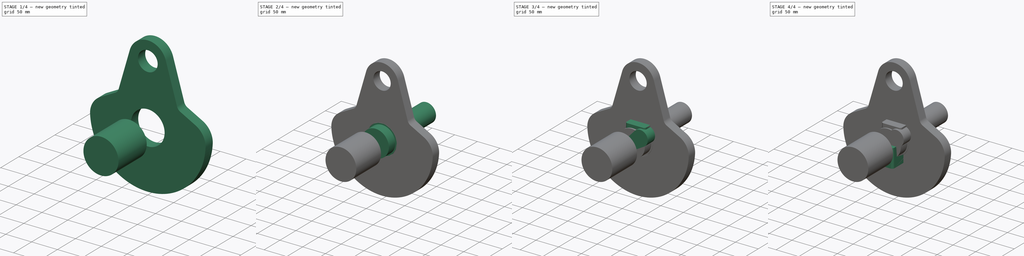
[diagram: build sequence overview — one tinted view per stage of 4, left to right]
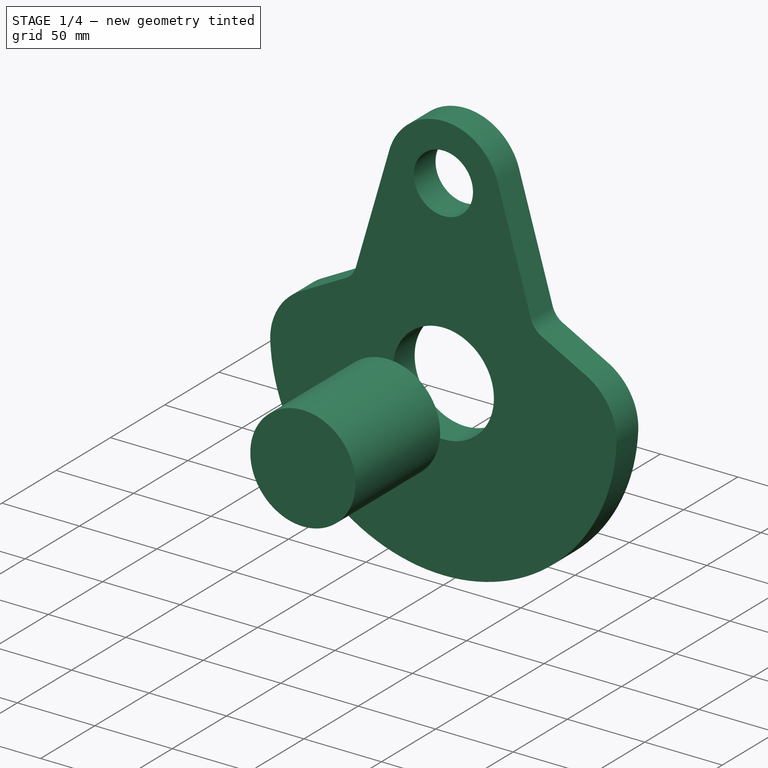
[diagram: stage 1 of 4 — iso view after this stage's code; geometry added in this stage tinted green]
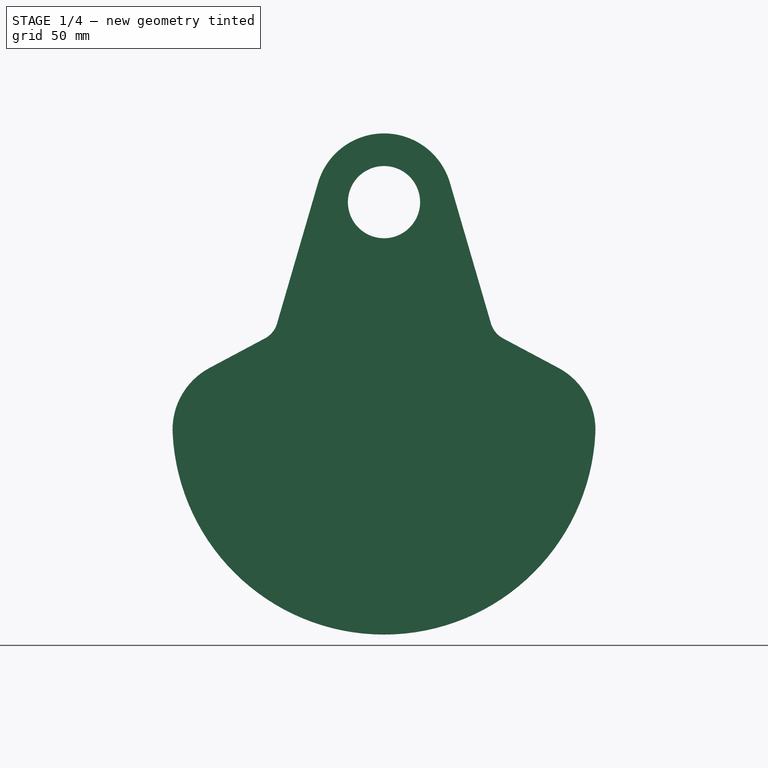
[diagram: stage 1 of 4 — front view after this stage's code; geometry added in this stage tinted green]
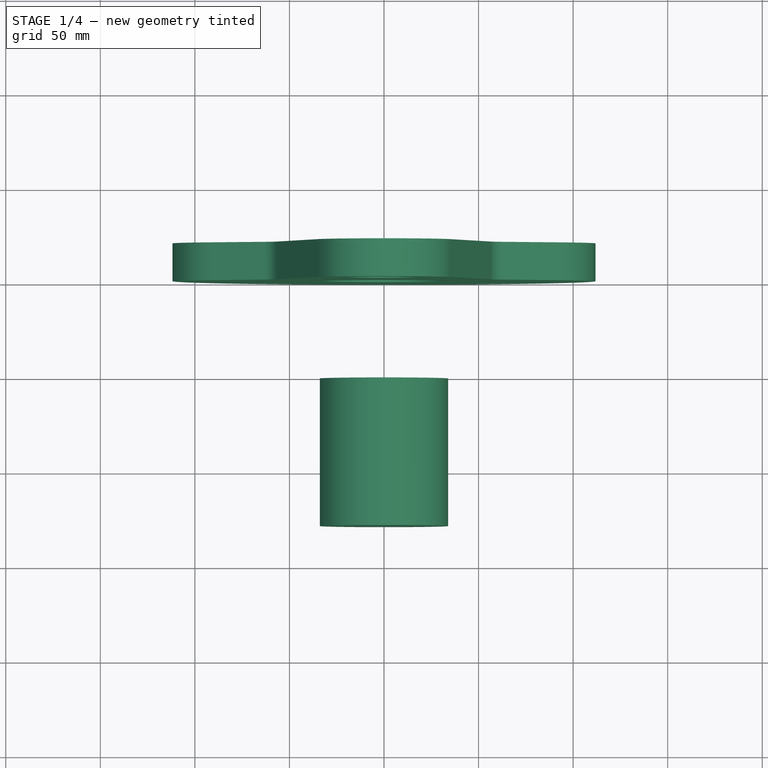
[diagram: stage 1 of 4 — top view after this stage's code; geometry added in this stage tinted green]
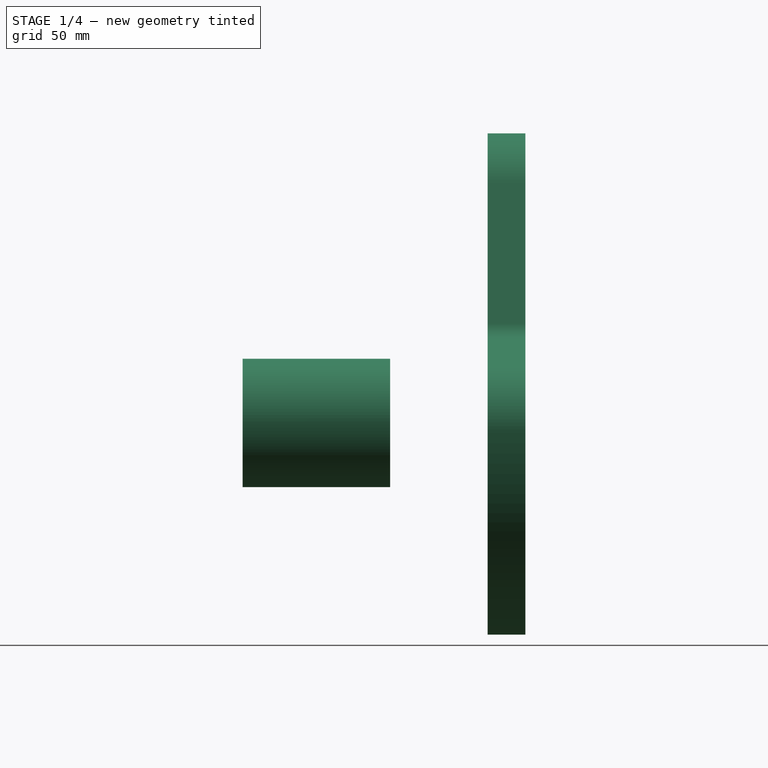
[diagram: stage 1 of 4 — right view after this stage's code; geometry added in this stage tinted green]
FCSTD DOCUMENT  (FreeCAD 1.1R14555 (Git shallow))
Label: BMW_R35
License: All rights reserved
objects: Sketcher::SketchObject×11, App::Point×6, PartDesign::Pad×5, PartDesign::Body×5, PartDesign::Revolution×3, PartDesign::Groove×1, PartDesign::Mirrored×1, PartDesign::FeatureBase×1, App::Part×1
note: 58 computed .brp shape members not serialized (recipe doc carries the construction recipe); baked Part::Feature solids carry a one-line shape summary decoded from their .brp

FEATURE [PartDesign::Body] Body001  label="Body_flywheel_shaft"
  AllowCompound = false
  Group = -> [Sketch008,Revolution001]
  Origin = -> Origin004
  Tip = -> Revolution001
FEATURE [App::Point] Origin007
  Role = Origin
FEATURE [Sketcher::SketchObject] Sketch009
  ArcFitTolerance = 1e-06
  AttachmentSupport = -> [Origin006]
  ExternalTypes = [0]
  FullyConstrained = false
  MakeInternals = false
  MapMode = 5
  Placement = pos=(0,0,0) rot=(1,0,0;1.5708rad)
  sketch-geometry (11):
    g0: ArcOfCircle CenterX=0 CenterY=0 CenterZ=0 NormalX=0 NormalY=0 NormalZ=1 AngleXU=0 Radius=111.898 StartAngle=4.71239 EndAngle=6.23607
    g1: ArcOfCircle CenterX=0 CenterY=116.782 CenterZ=0 NormalX=0 NormalY=0 NormalZ=1 AngleXU=0 Radius=36.3394 StartAngle=0.283607 EndAngle=1.5708
    g2: ArcOfCircle CenterX=74.7942 CenterY=-3.52641 CenterZ=0 NormalX=0 NormalY=0 NormalZ=1 AngleXU=0 Radius=37.0204 StartAngle=6.23607 EndAngle=7.36429
    g3: ArcOfCircle CenterX=69.2178 CenterY=56.3614 CenterZ=0 NormalX=0 NormalY=0 NormalZ=1 AngleXU=0 Radius=13.2064 StartAngle=3.4252 EndAngle=4.2227
    g4: LineSegment StartX=63.0061 StartY=44.707 StartZ=0 EndX=92.2068 EndY=29.1433 EndZ=0
    g5: LineSegment StartX=34.8878 StartY=126.95 StartZ=0 EndX=56.5389 EndY=52.6659 EndZ=0
    g6: ArcOfCircle CenterX=0 CenterY=0 CenterZ=0 NormalX=0 NormalY=0 NormalZ=1 AngleXU=0 Radius=32.5794 StartAngle=4.71239 EndAngle=7.85398
    g7: ArcOfCircle CenterX=0 CenterY=116.782 CenterZ=0 NormalX=0 NormalY=0 NormalZ=1 AngleXU=0 Radius=19.0882 StartAngle=4.71239 EndAngle=7.85398
    g8: LineSegment StartX=0 StartY=153.121 StartZ=0 EndX=0 EndY=135.87 EndZ=0
    g9: LineSegment StartX=1e-14 StartY=97.6936 StartZ=0 EndX=1e-14 EndY=32.5794 EndZ=0
    g10: LineSegment StartX=-6e-15 StartY=-32.5794 StartZ=0 EndX=-6e-15 EndY=-111.898 EndZ=0
  constraints (22):
    c: PointOnObject(g1,g-2)
    c: PointOnObject(g1,g-2)
    c: Tangent(g5,g3) = -1.5708
    c: Tangent(g4,g3) = -1.5708
    c: Tangent(g4,g2) = 1.5708
    c: Tangent(g2,g0) = -1.5708
    c: Coincident(g6,g-1)
    c: PointOnObject(g6,g-2)
    c: Coincident(g0,g6)
    c: Coincident(g7,g1)
    c: PointOnObject(g7,g-2)
    c: Coincident(g8,g1)
    c: Coincident(g8,g7)
    c: Vertical(g8)
    c: Coincident(g9,g7)
    c: Coincident(g9,g6)
    c: Vertical(g9)
    c: Coincident(g10,g6)
    c: Coincident(g10,g0)
    c: Vertical(g10)
    c: DistanceY(g0,g1) = 116.782
    c: Tangent(g5,g1) = 1.5708
FEATURE [PartDesign::Pad] Pad005
  Direction = (0,-1,0)
  Length = 20
  Length2 = 10
  Profile = -> Sketch009
  ReferenceAxis = -> Sketch009 [N_Axis]
  Refine = true
  Reversed = true
  SideType = 0
  Suppressed = false
  Type = 0
  Type2 = 0
FEATURE [PartDesign::Mirrored] Mirrored
  BaseFeature = -> Pad005
  MirrorPlane = -> YZ_Plane003
  Refine = true
  Suppressed = false
  TransformMode = 1
FEATURE [PartDesign::Body] Body003
  AllowCompound = false
  Group = -> [Clone]
  Origin = -> Origin008
  Placement = pos=(0,-70,0) rot=(0,0,1;0rad)
  Tip = -> Clone
FEATURE [App::Point] Origin011
  Role = Origin
FEATURE [Sketcher::SketchObject] Sketch010
  ArcFitTolerance = 1e-06
  AttachmentSupport = -> [Origin010]
  ExternalTypes = [0]
  FullyConstrained = false
  MakeInternals = false
  MapMode = 5
  Placement = pos=(0,0,0) rot=(0.57735,0.57735,0.57735;2.0944rad)
  sketch-geometry (4):
    g0: LineSegment StartX=-129.549 StartY=0 StartZ=0 EndX=-129.549 EndY=-33.9442 EndZ=0
    g1: LineSegment StartX=-129.549 StartY=-33.9442 StartZ=0 EndX=-51.5107 EndY=-33.9442 EndZ=0
    g2: LineSegment StartX=-51.5107 StartY=-33.9442 StartZ=0 EndX=-51.5107 EndY=0 EndZ=0
    g3: LineSegment StartX=-51.5107 StartY=0 StartZ=0 EndX=-129.549 EndY=0 EndZ=0
  constraints (9):
    c: Coincident(g0,g1)
    c: Coincident(g1,g2)
    c: Coincident(g2,g3)
    c: Coincident(g3,g0)
    c: Vertical(g0)
    c: Vertical(g2)
    c: Horizontal(g1)
    c: Horizontal(g3)
    c: PointOnObject(g0,g-1)
FEATURE [PartDesign::Revolution] Revolution002
  Angle = 360
  Angle2 = 60
  Axis = (0,1,0)
  Base = (0,0,0)
  Profile = -> Sketch010
  ReferenceAxis = -> Sketch010 [H_Axis]
  Reversed = true
  Suppressed = false
  Type = 0
FEATURE [PartDesign::Body] Body004
  AllowCompound = false
  Group = -> [Sketch010,Revolution002]
  Origin = -> Origin010
  Tip = -> Revolution002
FEATURE [App::Part] Part  label="Part_CrankShaft"
  Group = -> [Body001,Body002,Body003,Body004]
  Origin = -> Origin002
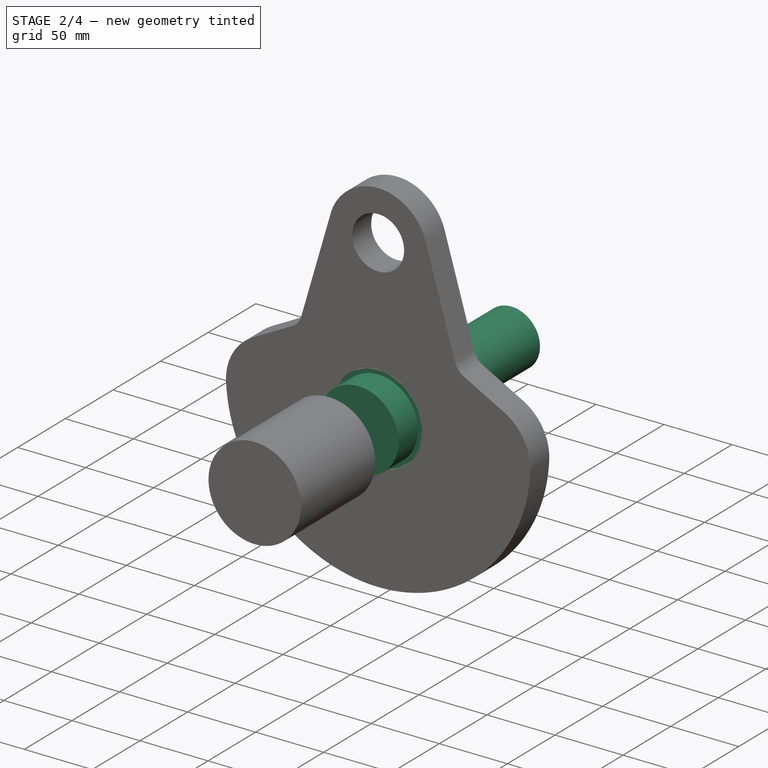
[diagram: stage 2 of 4 — iso view after this stage's code; geometry added in this stage tinted green]
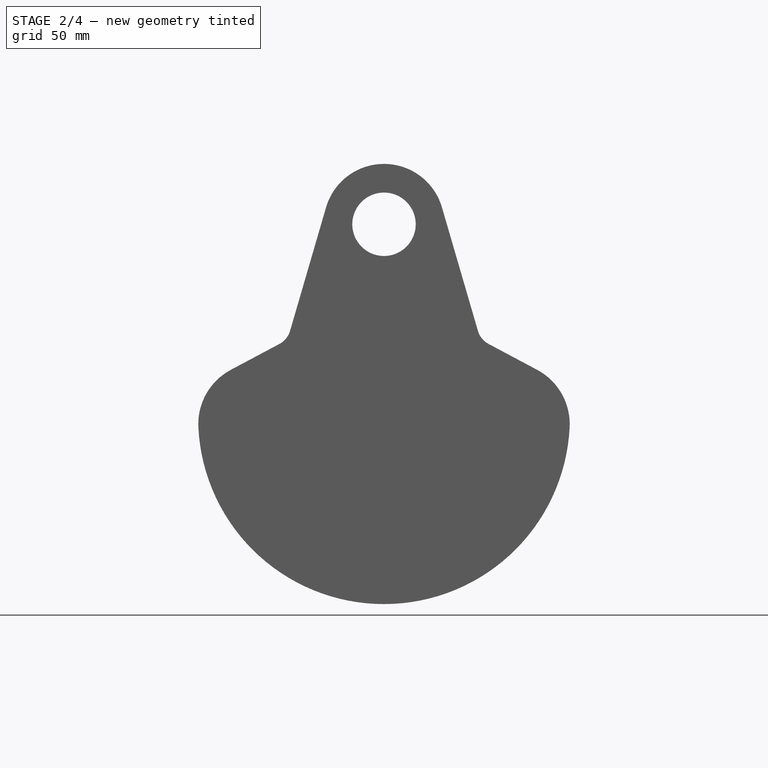
[diagram: stage 2 of 4 — front view after this stage's code; geometry added in this stage tinted green]
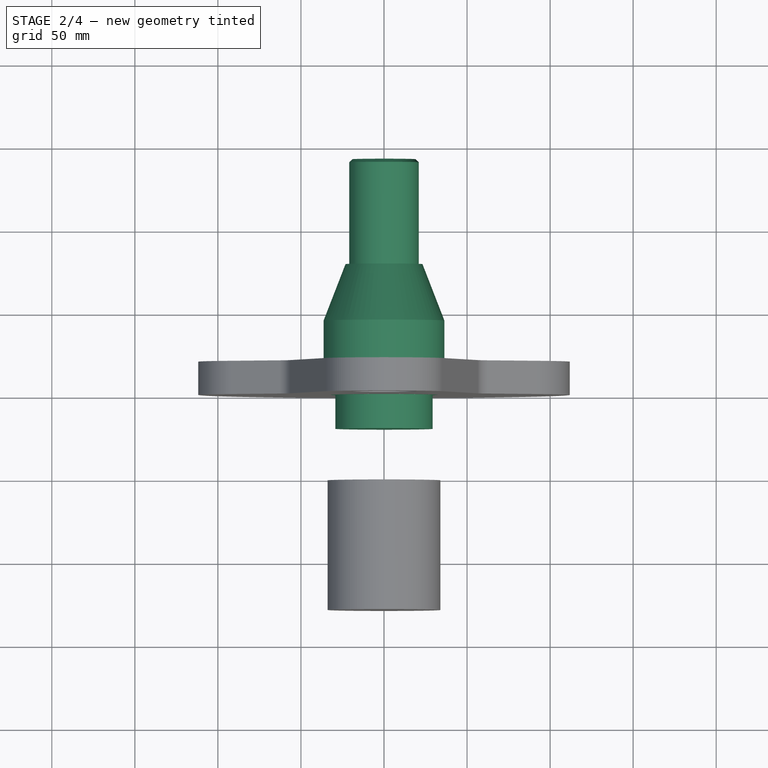
[diagram: stage 2 of 4 — top view after this stage's code; geometry added in this stage tinted green]
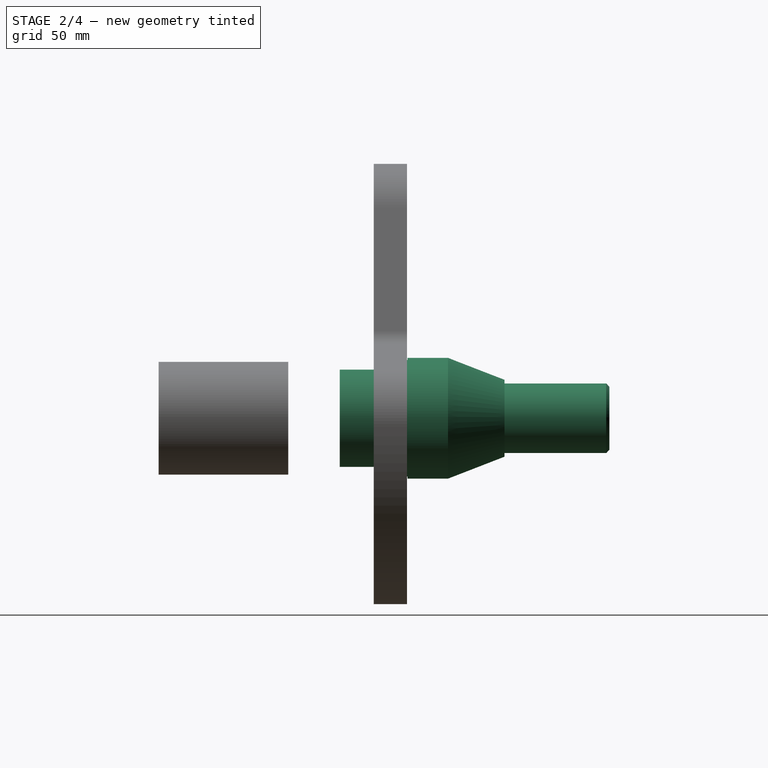
[diagram: stage 2 of 4 — right view after this stage's code; geometry added in this stage tinted green]
FEATURE [App::Point] Origin001
  Role = Origin
FEATURE [Sketcher::SketchObject] Sketch
  ArcFitTolerance = 1e-06
  AttachmentSupport = -> [Origin]
  ExternalTypes = [0]
  FullyConstrained = false
  MakeInternals = false
  MapMode = 5
  sketch-geometry (8):
    g0: LineSegment StartX=35.0769 StartY=40.6869 StartZ=0 EndX=35.0769 EndY=14.7578 EndZ=0
    g1: ArcOfCircle CenterX=32.6553 CenterY=14.7578 CenterZ=0 NormalX=0 NormalY=0 NormalZ=1 AngleXU=0 Radius=2.42155 StartAngle=5.24799 EndAngle=6.28319
    g2: LineSegment StartX=33.8912 StartY=12.6753 StartZ=0 EndX=30.4803 EndY=10.6511 EndZ=0
    g3: ArcOfCircle CenterX=31.7162 CenterY=8.56865 CenterZ=0 NormalX=0 NormalY=0 NormalZ=1 AngleXU=0 Radius=2.42155 StartAngle=2.1064 EndAngle=3.14159
    g4: LineSegment StartX=29.2946 StartY=8.56865 StartZ=0 EndX=29.2946 EndY=-20.4803 EndZ=0
    g5: LineSegment StartX=29.2946 StartY=-20.4803 StartZ=0 EndX=0 EndY=-20.4803 EndZ=0
    g6: LineSegment StartX=0 StartY=-20.4803 StartZ=0 EndX=0 EndY=40.6869 EndZ=0
    g7: LineSegment StartX=0 StartY=40.6869 StartZ=0 EndX=35.0769 EndY=40.6869 EndZ=0
  constraints (15):
    c: Vertical(g0)
    c: Tangent(g0,g1) = 1.5708
    c: Tangent(g1,g2) = 1.5708
    c: Tangent(g2,g3) = -1.5708
    c: Tangent(g3,g4) = -1.5708
    c: Coincident(g4,g5)
    c: Horizontal(g5)
    c: Coincident(g5,g6)
    c: Coincident(g7,g0)
    c: Vertical(g4)
    c: Equal(g3,g1)
    c: Horizontal(g7)
    c: Vertical(g6)
    c: Coincident(g6,g7)
    c: PointOnObject(g5,g-2)
FEATURE [PartDesign::Revolution] Revolution
  Angle = 360
  Angle2 = 60
  Axis = (0,1,0)
  Base = (0,0,0)
  Profile = -> Sketch
  ReferenceAxis = -> Sketch [V_Axis]
  Reversed = true
  Suppressed = false
  Type = 0
FEATURE [Sketcher::SketchObject] Sketch007
  ArcFitTolerance = 1e-06
  AttachmentSupport = -> [Pad004]
  ExternalTypes = [0]
  FullyConstrained = true
  MakeInternals = false
  MapMode = 5
  Placement = pos=(0,0,36) rot=(0,0,1;0rad)
FEATURE [PartDesign::Body] Body  label="Body_EngineBlock_exsperimental"
  AllowCompound = false
  Group = -> [Sketch,Revolution,Sketch001,Pad,Sketch002,Pad001,Sketch003,Groove,Sketch004,Pad003,Sketch005,Sketch006,Pad004,Sketch007]
  Origin = -> Origin
  Tip = -> Pad004
FEATURE [App::Point] Origin003
  Role = Origin
FEATURE [App::Point] Origin005
  Role = Origin
FEATURE [Sketcher::SketchObject] Sketch008
  ArcFitTolerance = 1e-06
  AttachmentSupport = -> [Origin004]
  ExternalTypes = [0]
  FullyConstrained = false
  MakeInternals = false
  MapMode = 5
  Placement = pos=(0,0,0) rot=(0.57735,0.57735,0.57735;2.0944rad)
  sketch-geometry (12):
    g0: LineSegment StartX=128.651 StartY=0 StartZ=0 EndX=128.651 EndY=-12.5511 EndZ=0
    g1: LineSegment StartX=128.651 StartY=-12.5511 StartZ=0 EndX=141.88 EndY=-12.5511 EndZ=0
    g2: LineSegment StartX=141.88 StartY=-12.5511 StartZ=0 EndX=141.88 EndY=-18.9745 EndZ=0
    g3: LineSegment StartX=141.88 StartY=-18.9745 StartZ=0 EndX=140.006 EndY=-20.9206 EndZ=0
    g4: LineSegment StartX=140.006 StartY=-20.9206 StartZ=0 EndX=78.7102 EndY=-20.9206 EndZ=0
    g5: LineSegment StartX=78.7102 StartY=-20.9206 StartZ=0 EndX=78.7102 EndY=-23.1653 EndZ=0
    g6: LineSegment StartX=78.7102 StartY=-23.1653 StartZ=0 EndX=44.7142 EndY=-36.3608 EndZ=0
    g7: LineSegment StartX=44.7142 StartY=-36.3608 StartZ=0 EndX=20.279 EndY=-36.3608 EndZ=0
    g8: LineSegment StartX=20.279 StartY=-36.3608 StartZ=0 EndX=20.279 EndY=-32.3749 EndZ=0
    g9: LineSegment StartX=20.279 StartY=-32.3749 StartZ=0 EndX=0 EndY=-32.3749 EndZ=0
    g10: LineSegment StartX=0 StartY=-32.3749 StartZ=0 EndX=0 EndY=0 EndZ=0
    g11: LineSegment StartX=0 StartY=0 StartZ=0 EndX=128.651 EndY=0 EndZ=0
  constraints (23):
    c: PointOnObject(g0,g-1)
    c: Vertical(g0)
    c: Coincident(g1,g0)
    c: Horizontal(g1)
    c: Coincident(g2,g1)
    c: Vertical(g2)
    c: Coincident(g3,g2)
    c: Coincident(g4,g3)
    c: Horizontal(g4)
    c: Coincident(g5,g4)
    c: Vertical(g5)
    c: Coincident(g6,g5)
    c: Coincident(g7,g6)
    c: Horizontal(g7)
    c: Coincident(g8,g7)
    c: Vertical(g8)
    c: Coincident(g9,g8)
    c: Horizontal(g9)
    c: Coincident(g10,g9)
    c: Vertical(g10)
    c: Coincident(g11,g10)
    c: Coincident(g11,g0)
    c: Coincident(g10,g-1)
FEATURE [PartDesign::Revolution] Revolution001
  Angle = 360
  Angle2 = 60
  Axis = (0,1,0)
  Base = (0,0,0)
  Profile = -> Sketch008
  ReferenceAxis = -> Sketch008 [H_Axis]
  Reversed = true
  Suppressed = false
  Type = 0
FEATURE [PartDesign::Body] Body002
  AllowCompound = false
  Group = -> [Sketch009,Pad005,Mirrored]
  Origin = -> Origin006
  Tip = -> Mirrored
FEATURE [App::Point] Origin009
  Role = Origin
FEATURE [PartDesign::FeatureBase] Clone
  BaseFeature = -> Body002
  Suppressed = false
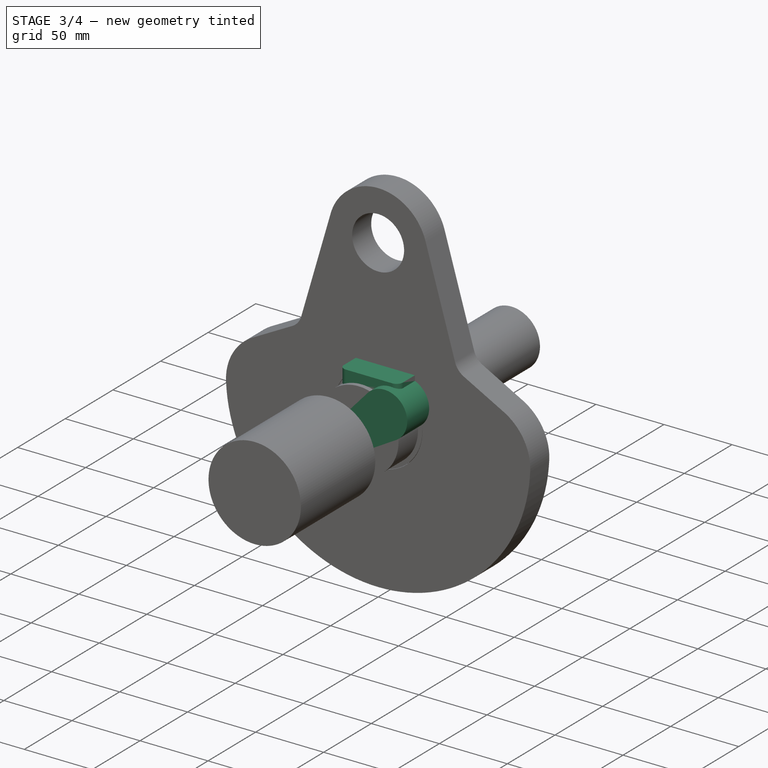
[diagram: stage 3 of 4 — iso view after this stage's code; geometry added in this stage tinted green]
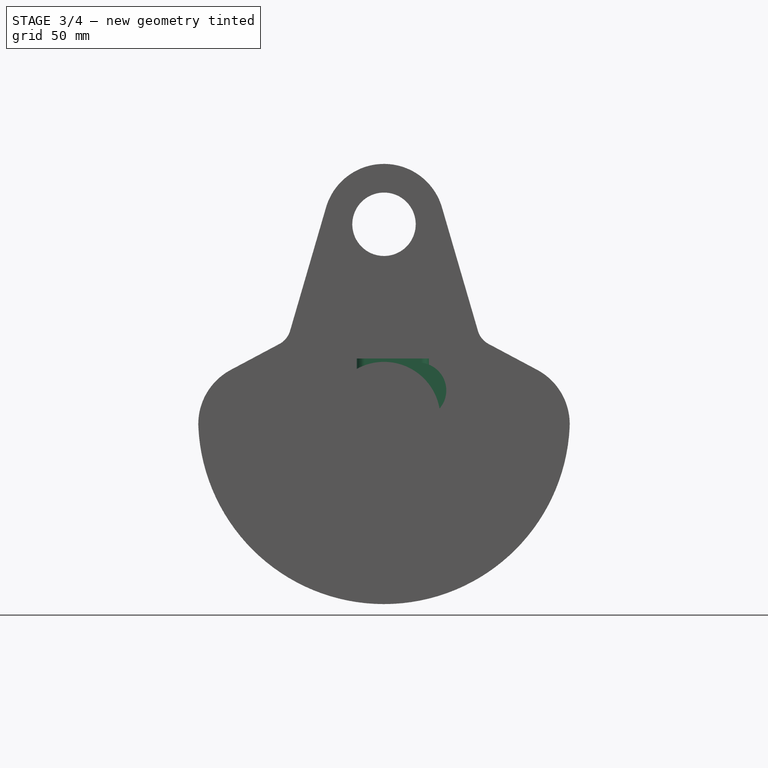
[diagram: stage 3 of 4 — front view after this stage's code; geometry added in this stage tinted green]
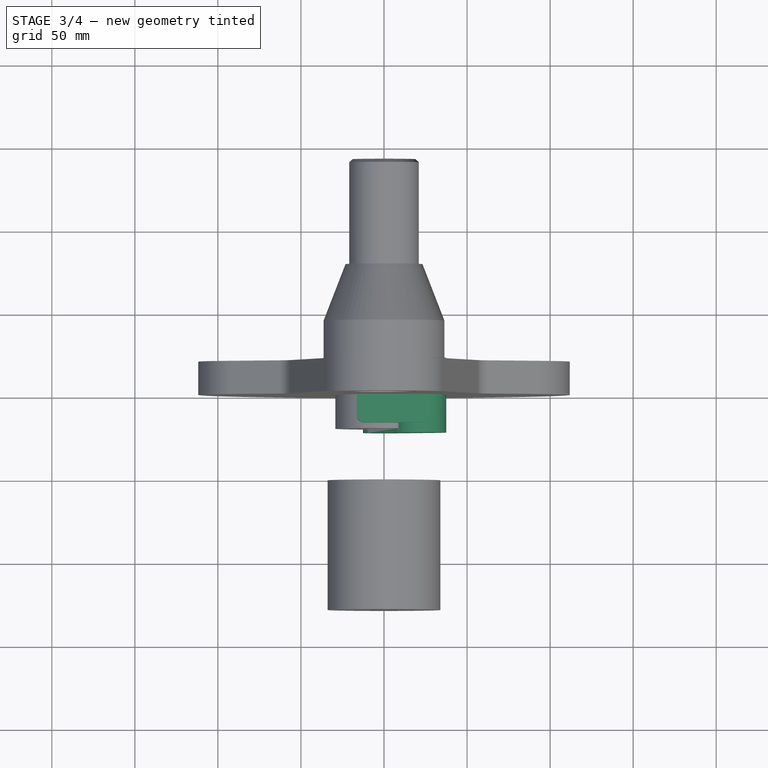
[diagram: stage 3 of 4 — top view after this stage's code; geometry added in this stage tinted green]
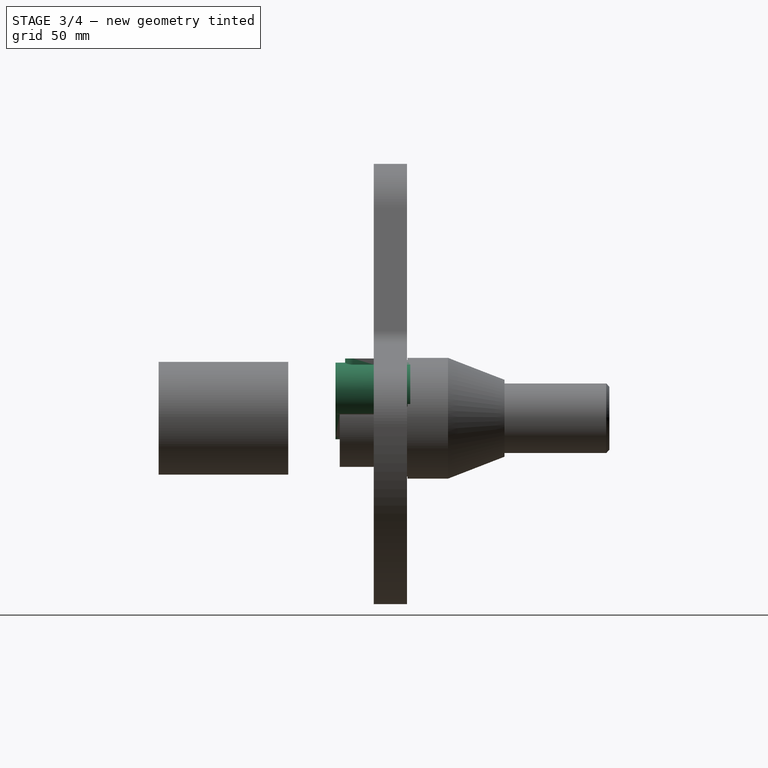
[diagram: stage 3 of 4 — right view after this stage's code; geometry added in this stage tinted green]
FEATURE [Sketcher::SketchObject] Sketch001
  ArcFitTolerance = 1e-06
  AttachmentSupport = -> [Origin]
  ExternalTypes = [0]
  FullyConstrained = false
  MakeInternals = false
  MapMode = 5
  Placement = pos=(0,0,0) rot=(1,0,0;1.5708rad)
  sketch-geometry (5):
    g0: ArcOfCircle CenterX=20.7635 CenterY=16.7618 CenterZ=0 NormalX=0 NormalY=0 NormalZ=1 AngleXU=0 Radius=16.7302 StartAngle=5.23697 EndAngle=8.68772
    g1: ArcOfCircle CenterX=0 CenterY=0 CenterZ=0 NormalX=0 NormalY=0 NormalZ=1 AngleXU=0 Radius=12.6217 StartAngle=2.40454 EndAngle=5.23697
    g2: LineSegment StartX=-9.34574 StartY=8.48321 StartZ=0 EndX=8.37562 EndY=28.0064 EndZ=0
    g3: LineSegment StartX=6.32159 StartY=-10.9245 StartZ=0 EndX=29.1428 EndY=2.28124 EndZ=0
    g4: GeomPoint [constr] X=20.7635 Y=1.4e-15 Z=0
  constraints (7):
    c: Coincident(g1,g-1)
    c: Tangent(g2,g1) = 1.5708
    c: Tangent(g3,g1) = -1.5708
    c: Symmetric(g-3,g-3,g4)
    c: Vertical(g4,g0)
    c: Tangent(g3,g0) = -1.5708
    c: Tangent(g2,g0) = 1.5708
FEATURE [PartDesign::Pad] Pad
  BaseFeature = -> Revolution
  Direction = (0,-1,2e-16)
  Length = 23
  Length2 = 22
  Profile = -> Sketch001
  ReferenceAxis = -> Sketch001 [N_Axis]
  SideType = 1
  Suppressed = false
  Type = 0
  Type2 = 0
FEATURE [Sketcher::SketchObject] Sketch002
  ArcFitTolerance = 1e-06
  AttachmentSupport = -> [Origin]
  ExternalTypes = [0]
  FullyConstrained = false
  MakeInternals = false
  MapMode = 5
  sketch-geometry (17):
    g0: Circle [constr] CenterX=0 CenterY=0 CenterZ=0 NormalX=0 NormalY=0 NormalZ=1 AngleXU=0 Radius=12.0692
    g1: LineSegment StartX=-16.4052 StartY=12.4949 StartZ=0 EndX=-16.4052 EndY=-12.4949 EndZ=0
    g2: LineSegment StartX=-11.6628 StartY=-17.2373 StartZ=0 EndX=22.3025 EndY=-17.2373 EndZ=0
    g3: LineSegment StartX=27.0448 StartY=-12.4949 StartZ=0 EndX=27.0448 EndY=12.4949 EndZ=0
    g4: LineSegment StartX=22.3025 StartY=17.2373 StartZ=0 EndX=-11.6628 EndY=17.2373 EndZ=0
    g5: ArcOfCircle CenterX=-11.6628 CenterY=12.4949 CenterZ=0 NormalX=0 NormalY=0 NormalZ=1 AngleXU=0 Radius=4.74238 StartAngle=1.5708 EndAngle=3.14159
    g6: ArcOfCircle CenterX=-11.6628 CenterY=-12.4949 CenterZ=0 NormalX=0 NormalY=0 NormalZ=1 AngleXU=0 Radius=4.74238 StartAngle=3.14159 EndAngle=4.71239
    g7: ArcOfCircle CenterX=22.3025 CenterY=-12.4949 CenterZ=0 NormalX=0 NormalY=0 NormalZ=1 AngleXU=0 Radius=4.74238 StartAngle=4.71239 EndAngle=6.28319
    g8: ArcOfCircle CenterX=22.3025 CenterY=12.4949 CenterZ=0 NormalX=0 NormalY=0 NormalZ=1 AngleXU=0 Radius=4.74238 StartAngle=0 EndAngle=1.5708
    g9: GeomPoint [constr] X=-16.4052 Y=17.2373 Z=0
    g10: GeomPoint [constr] X=27.0448 Y=-17.2373 Z=0
    g11: Circle [constr] CenterX=20.7635 CenterY=6.39151 CenterZ=0 NormalX=0 NormalY=0 NormalZ=1 AngleXU=0 Radius=3.15436
    g12: Circle [constr] CenterX=20.7635 CenterY=-6.39151 CenterZ=0 NormalX=0 NormalY=0 NormalZ=1 AngleXU=0 Radius=3.15436
    g13: Circle [constr] CenterX=-11.6628 CenterY=12.4949 CenterZ=0 NormalX=0 NormalY=0 NormalZ=1 AngleXU=0 Radius=1.61443
    g14: Circle [constr] CenterX=-11.6628 CenterY=-12.4949 CenterZ=0 NormalX=0 NormalY=0 NormalZ=1 AngleXU=0 Radius=1.61443
    g15: Circle [constr] CenterX=11.6628 CenterY=-12.4949 CenterZ=0 NormalX=0 NormalY=0 NormalZ=1 AngleXU=0 Radius=1.61443
    g16: Circle [constr] CenterX=11.6628 CenterY=12.8843 CenterZ=0 NormalX=0 NormalY=0 NormalZ=1 AngleXU=0 Radius=1.61443
  constraints (30):
    c: Tangent(g1,g5) = -1.5708
    c: Tangent(g1,g6) = -1.5708
    c: Tangent(g2,g6) = -1.5708
    c: Tangent(g2,g7) = -1.5708
    c: Tangent(g3,g7) = -1.5708
    c: Tangent(g3,g8) = -1.5708
    c: Tangent(g4,g8) = -1.5708
    c: Tangent(g4,g5) = -1.5708
    c: Vertical(g1)
    c: Vertical(g3)
    c: Horizontal(g2)
    c: Horizontal(g4)
    c: Equal(g5,g6)
    c: Equal(g6,g7)
    c: Equal(g7,g8)
    c: PointOnObject(g9,g1)
    c: PointOnObject(g9,g4)
    c: PointOnObject(g10,g2)
    c: PointOnObject(g10,g3)
    c: Coincident(g0,g-1)
    c: Symmetric(g12,g11,g-1)
    c: Coincident(g13,g5)
    c: Coincident(g14,g6)
    c: Symmetric(g5,g15,g0)
    c: Horizontal(g6,g15)
    c: Vertical(g15,g16)
    c: Equal(g14,g13)
    c: Equal(g13,g16)
    c: Equal(g16,g15)
    c: Equal(g12,g11)
FEATURE [PartDesign::Pad] Pad001
  BaseFeature = -> Pad
  Direction = (0,0,1)
  Length = 36
  Length2 = 10
  Profile = -> Sketch002
  ReferenceAxis = -> Sketch002 [N_Axis]
  SideType = 0
  Suppressed = false
  Type = 0
  Type2 = 0
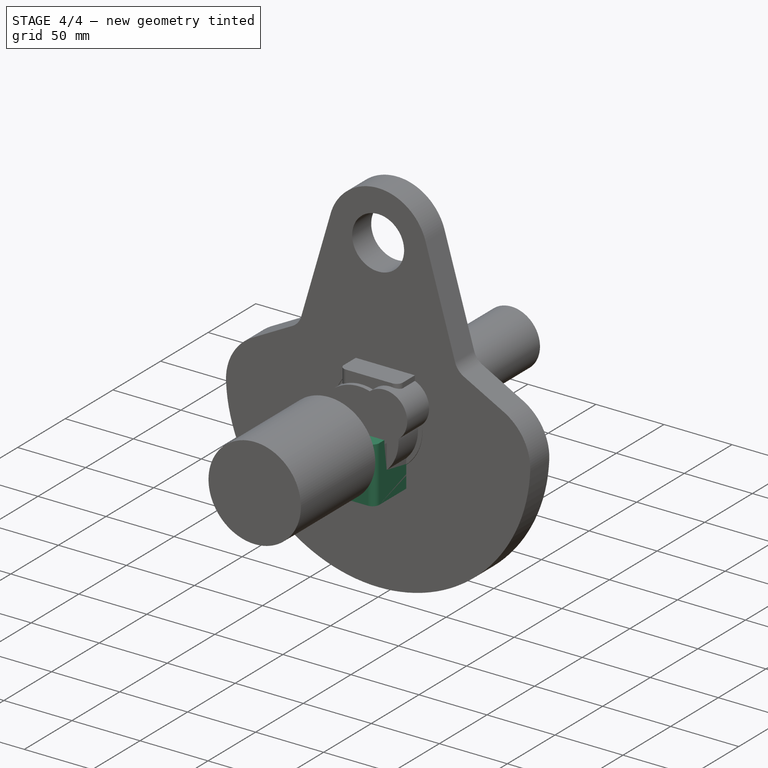
[diagram: stage 4 of 4 — iso view after this stage's code; geometry added in this stage tinted green]
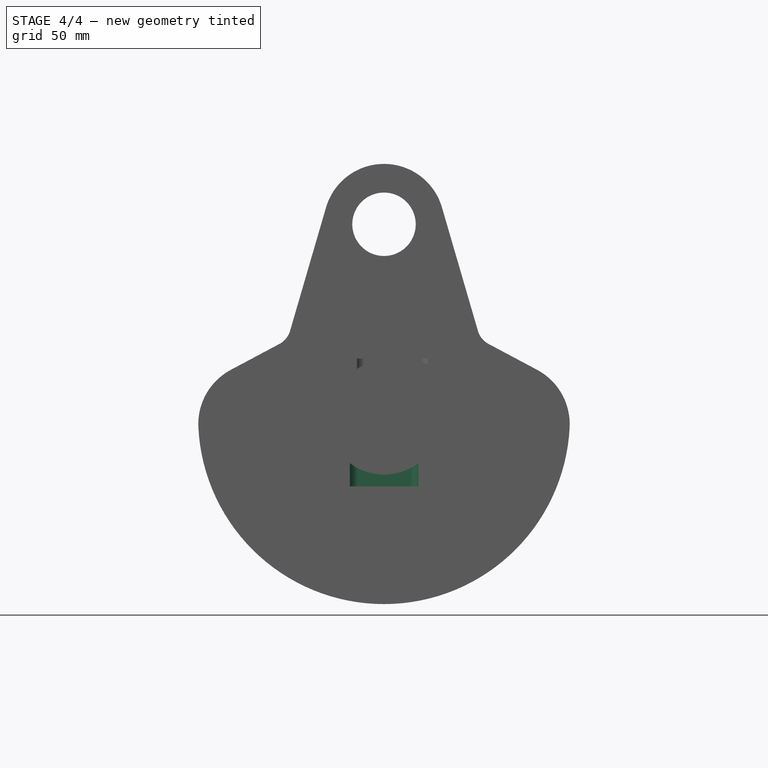
[diagram: stage 4 of 4 — front view after this stage's code; geometry added in this stage tinted green]
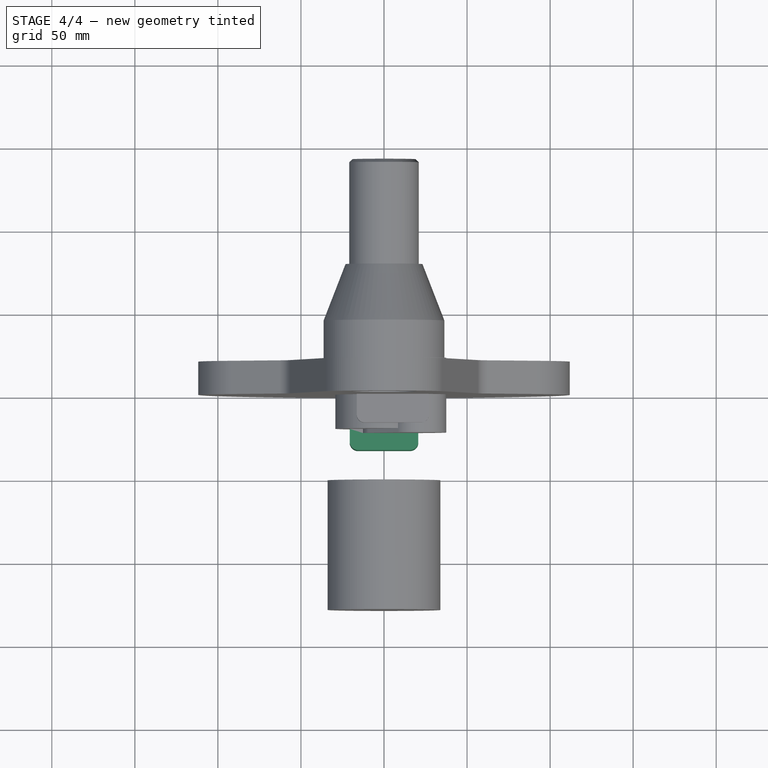
[diagram: stage 4 of 4 — top view after this stage's code; geometry added in this stage tinted green]
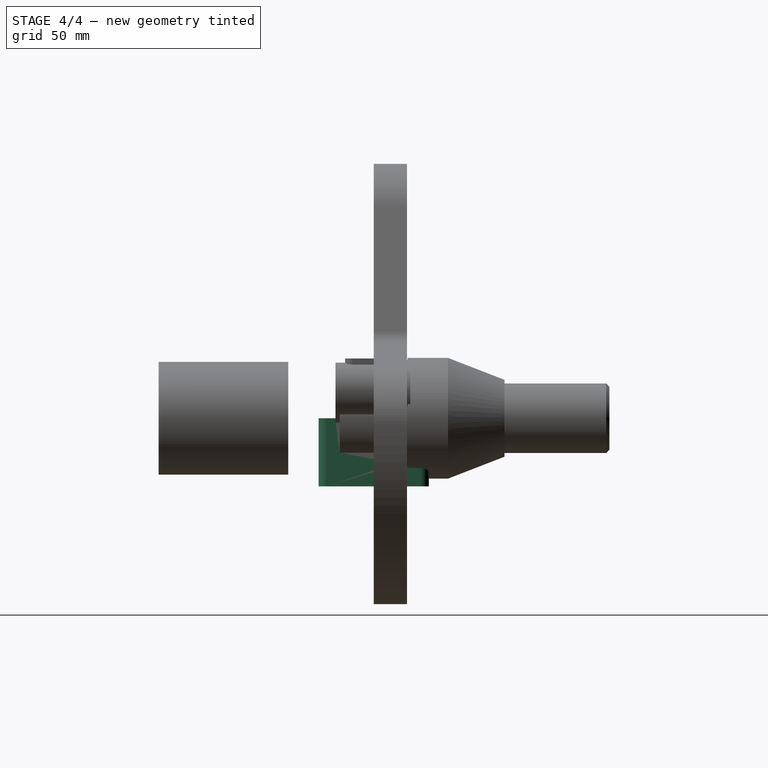
[diagram: stage 4 of 4 — right view after this stage's code; geometry added in this stage tinted green]
FEATURE [Sketcher::SketchObject] Sketch003
  ArcFitTolerance = 1e-06
  AttachmentSupport = -> [Origin]
  ExternalTypes = [0]
  FullyConstrained = false
  MakeInternals = false
  MapMode = 5
  sketch-geometry (8):
    g0: LineSegment StartX=31.241 StartY=47.4665 StartZ=0 EndX=31.241 EndY=19.1732 EndZ=0
    g1: LineSegment StartX=31.241 StartY=19.1732 StartZ=0 EndX=16.4209 EndY=19.1732 EndZ=0
    g2: LineSegment StartX=16.4209 StartY=-14.9521 StartZ=0 EndX=4.56829 EndY=-14.9521 EndZ=0
    g3: LineSegment StartX=4.56829 StartY=-29.1152 StartZ=0 EndX=0 EndY=-28.9828 EndZ=0
    g4: LineSegment StartX=0 StartY=47.4665 StartZ=0 EndX=31.241 EndY=47.4665 EndZ=0
    g5: LineSegment StartX=16.4209 StartY=19.1732 StartZ=0 EndX=16.4209 EndY=-14.9521 EndZ=0
    g6: LineSegment StartX=4.56829 StartY=-29.1152 StartZ=0 EndX=4.56829 EndY=-14.9521 EndZ=0
    g7: LineSegment StartX=0 StartY=-28.9828 StartZ=0 EndX=0 EndY=47.4665 EndZ=0
  constraints (16):
    c: Vertical(g0)
    c: Coincident(g1,g0)
    c: Horizontal(g1)
    c: PointOnObject(g3,g-2)
    c: PointOnObject(g4,g-2)
    c: Coincident(g4,g0)
    c: Horizontal(g4)
    c: Coincident(g5,g1)
    c: Coincident(g5,g2)
    c: Vertical(g5)
    c: Coincident(g6,g3)
    c: Coincident(g6,g2)
    c: Coincident(g7,g3)
    c: Coincident(g7,g4)
    c: Vertical(g6)
    c: Horizontal(g2)
FEATURE [PartDesign::Groove] Groove
  Angle = 360
  Angle2 = 60
  Axis = (0,1,0)
  Base = (0,0,0)
  BaseFeature = -> Pad001
  Profile = -> Sketch003
  ReferenceAxis = -> Sketch003 [V_Axis]
  Suppressed = true
  Type = 0
FEATURE [Sketcher::SketchObject] Sketch004
  ArcFitTolerance = 1e-06
  AttachmentSupport = -> [Origin]
  ExternalTypes = [0]
  FullyConstrained = false
  MakeInternals = false
  MapMode = 5
  sketch-geometry (20):
    g0: LineSegment StartX=-20.655 StartY=28.2037 StartZ=0 EndX=-20.655 EndY=-28.2037 EndZ=0
    g1: LineSegment StartX=-15.655 StartY=-33.2037 StartZ=0 EndX=15.655 EndY=-33.2037 EndZ=0
    g2: LineSegment StartX=20.655 StartY=-28.2037 StartZ=0 EndX=20.655 EndY=28.2037 EndZ=0
    g3: LineSegment StartX=15.655 StartY=33.2037 StartZ=0 EndX=-15.655 EndY=33.2037 EndZ=0
    g4: ArcOfCircle CenterX=-15.655 CenterY=28.2037 CenterZ=0 NormalX=0 NormalY=0 NormalZ=1 AngleXU=0 Radius=5 StartAngle=1.5708 EndAngle=3.14159
    g5: ArcOfCircle CenterX=-15.655 CenterY=-28.2037 CenterZ=0 NormalX=0 NormalY=0 NormalZ=1 AngleXU=0 Radius=5 StartAngle=3.14159 EndAngle=4.71239
    g6: ArcOfCircle CenterX=15.655 CenterY=-28.2037 CenterZ=0 NormalX=0 NormalY=0 NormalZ=1 AngleXU=0 Radius=5 StartAngle=4.71239 EndAngle=6.28319
    g7: ArcOfCircle CenterX=15.655 CenterY=28.2037 CenterZ=0 NormalX=0 NormalY=0 NormalZ=1 AngleXU=0 Radius=5 StartAngle=3e-16 EndAngle=1.5708
    g8: GeomPoint [constr] X=-20.655 Y=33.2037 Z=0
    g9: GeomPoint [constr] X=20.655 Y=-33.2037 Z=0
    g10: LineSegment [constr] StartX=-17.655 StartY=28.2037 StartZ=0 EndX=-17.655 EndY=-28.2037 EndZ=0
    g11: LineSegment [constr] StartX=-15.655 StartY=-30.2037 StartZ=0 EndX=15.655 EndY=-30.2037 EndZ=0
    g12: LineSegment [constr] StartX=17.655 StartY=-28.2037 StartZ=0 EndX=17.655 EndY=28.2037 EndZ=0
    g13: LineSegment [constr] StartX=15.655 StartY=30.2037 StartZ=0 EndX=-15.655 EndY=30.2037 EndZ=0
    g14: ArcOfCircle [constr] CenterX=-15.655 CenterY=28.2037 CenterZ=0 NormalX=0 NormalY=0 NormalZ=1 AngleXU=0 Radius=2 StartAngle=1.5708 EndAngle=3.14159
    g15: ArcOfCircle [constr] CenterX=-15.655 CenterY=-28.2037 CenterZ=0 NormalX=0 NormalY=0 NormalZ=1 AngleXU=0 Radius=2 StartAngle=3.14159 EndAngle=4.71239
    g16: ArcOfCircle [constr] CenterX=15.655 CenterY=-28.2037 CenterZ=0 NormalX=0 NormalY=0 NormalZ=1 AngleXU=0 Radius=2 StartAngle=4.71239 EndAngle=6.28319
    g17: ArcOfCircle [constr] CenterX=15.655 CenterY=28.2037 CenterZ=0 NormalX=0 NormalY=0 NormalZ=1 AngleXU=0 Radius=2 StartAngle=5e-16 EndAngle=1.5708
    g18: GeomPoint [constr] X=-17.655 Y=30.2037 Z=0
    g19: GeomPoint [constr] X=17.655 Y=-30.2037 Z=0
  constraints (45):
    c: Tangent(g0,g4) = -1.5708
    c: Tangent(g0,g5) = -1.5708
    c: Tangent(g1,g5) = -1.5708
    c: Tangent(g1,g6) = -1.5708
    c: Tangent(g2,g6) = -1.5708
    c: Tangent(g2,g7) = -1.5708
    c: Tangent(g3,g7) = -1.5708
    c: Tangent(g3,g4) = -1.5708
    c: Vertical(g0)
    c: Vertical(g2)
    c: Horizontal(g1)
    c: Horizontal(g3)
    c: Equal(g4,g5)
    c: Equal(g5,g6)
    c: Equal(g6,g7)
    c: PointOnObject(g8,g0)
    c: PointOnObject(g8,g3)
    c: PointOnObject(g9,g1)
    c: PointOnObject(g9,g2)
    c: Radius(g4) = 5
    c: DistanceY(g1,g3) = 66.4074
    c: Symmetric(g5,g7,g-1)
    c: Tangent(g10,g14) = -1.5708
    c: Tangent(g10,g15) = -1.5708
    c: Tangent(g11,g15) = -1.5708
    c: Tangent(g11,g16) = -1.5708
    c: Tangent(g12,g16) = -1.5708
    c: Tangent(g12,g17) = -1.5708
    c: Tangent(g13,g17) = -1.5708
    c: Tangent(g13,g14) = -1.5708
    c: Vertical(g10)
    c: Vertical(g12)
    c: Horizontal(g11)
    c: Horizontal(g13)
    c: Equal(g14,g15)
    c: Equal(g15,g16)
    c: Equal(g16,g17)
    c: PointOnObject(g18,g10)
    c: PointOnObject(g18,g13)
    c: PointOnObject(g19,g11)
    c: PointOnObject(g19,g12)
    c: DistanceX(g0,g2) = 41.31
    c: Coincident(g5,g15)
    c: Coincident(g17,g7)
    c: DistanceY(g1,g11) = 3
FEATURE [PartDesign::Pad] Pad003
  BaseFeature = -> Groove
  Direction = (0,0,1)
  Length = 41
  Length2 = 10
  Profile = -> Sketch004
  ReferenceAxis = -> Sketch004 [N_Axis]
  Reversed = true
  SideType = 0
  Suppressed = false
  Type = 0
  Type2 = 0
FEATURE [Sketcher::SketchObject] Sketch005
  ArcFitTolerance = 1e-06
  AttachmentOffset = pos=(0,0,-9) rot=(0,0,1;0rad)
  AttachmentSupport = -> [Origin]
  ExternalTypes = [0]
  FullyConstrained = false
  MakeInternals = false
  MapMode = 5
  Placement = pos=(0,9,-2e-15) rot=(1,0,0;1.5708rad)
  sketch-geometry (1):
    g0: LineSegment StartX=-6.10581 StartY=-34.8767 StartZ=0 EndX=-28.385 EndY=-8.55659 EndZ=0
FEATURE [Sketcher::SketchObject] Sketch006
  ArcFitTolerance = 1e-06
  AttachmentSupport = -> [Sketch005]
  ExternalTypes = [0]
  FullyConstrained = false
  MakeInternals = false
  MapMode = 48
  Placement = pos=(-28.385,9,-8.55659) rot=(0.684505,0.684505,0.250811;2.65011rad)
  sketch-geometry (1):
    g0: Circle CenterX=0 CenterY=0 CenterZ=0 NormalX=0 NormalY=0 NormalZ=1 AngleXU=0 Radius=7.27605
  constraints (1):
    c: Coincident(g0,g-1)
FEATURE [PartDesign::Pad] Pad004
  BaseFeature = -> Pad003
  Direction = (0.646083,0,-0.763267)
  Length = 33
  Length2 = 10
  Profile = -> Sketch006
  ReferenceAxis = -> Sketch006 [N_Axis]
  Refine = true
  SideType = 0
  Suppressed = false
  Type = 0
  Type2 = 0
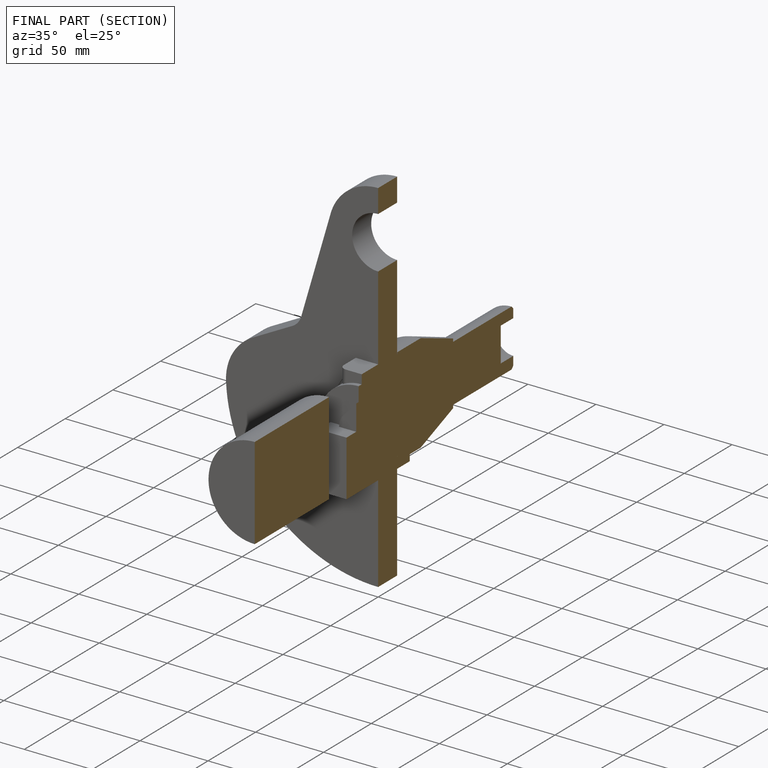
[diagram: finished part — half-section view (interior)]
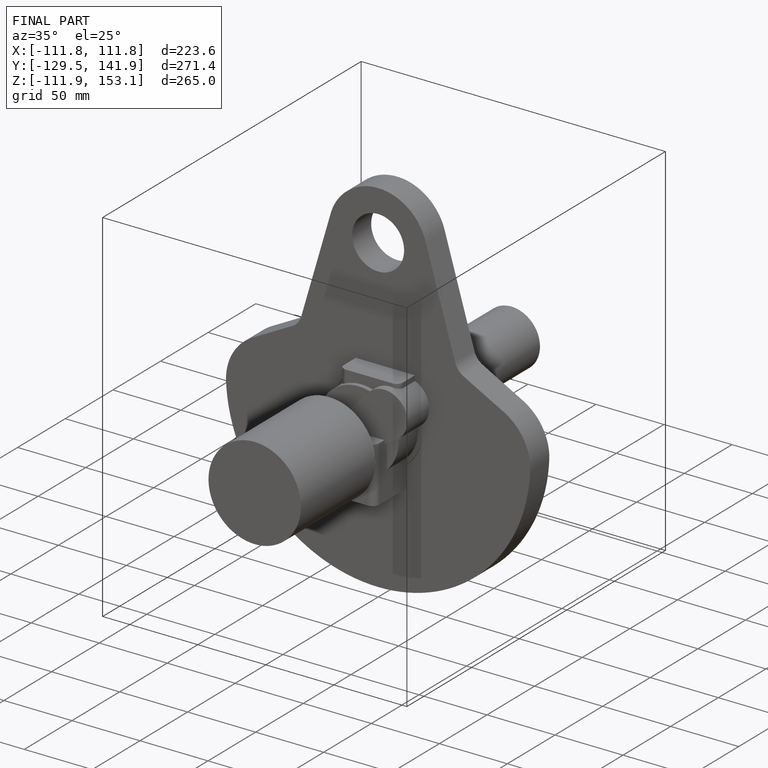
[diagram: finished part — iso view with bounding-box wireframe]
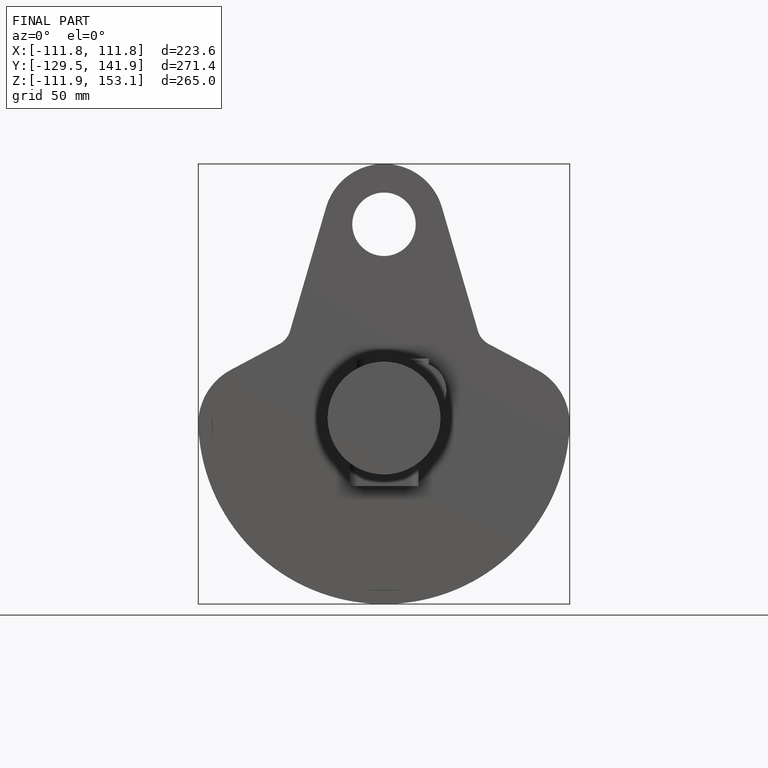
[diagram: finished part — front view with bounding-box wireframe]
